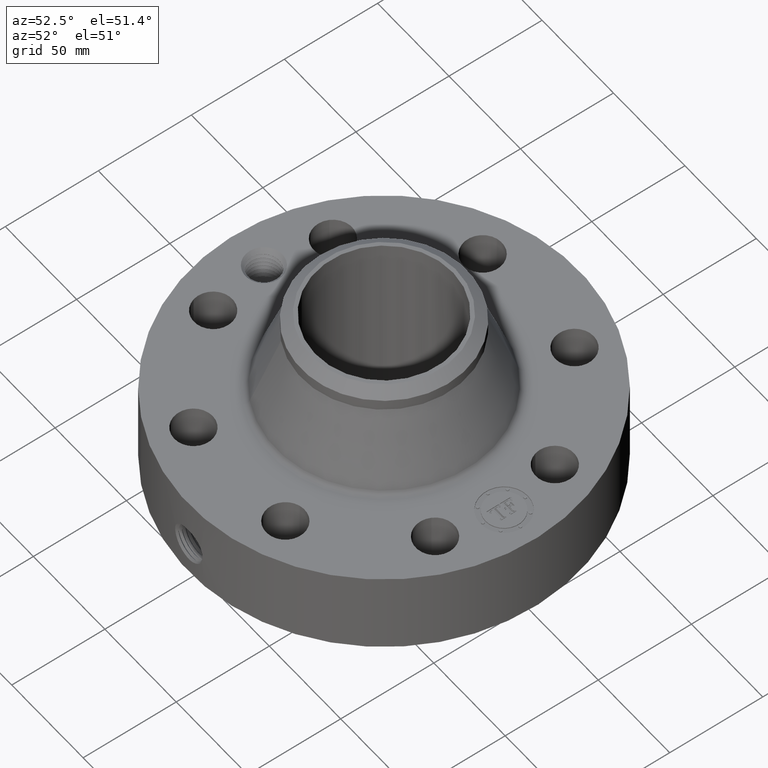
[diagram: clean part render]
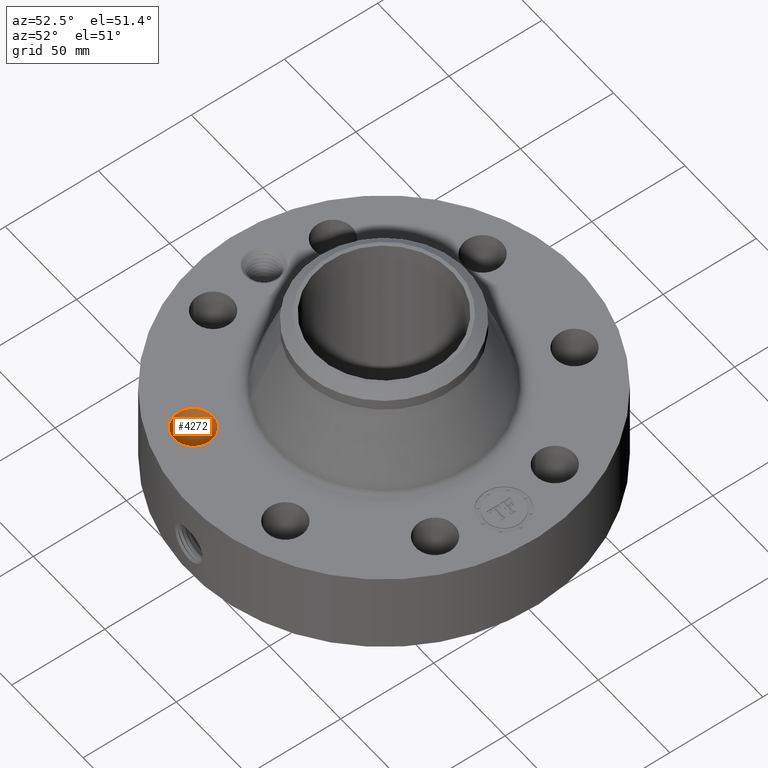
[diagram: same view with one face highlighted and labeled with its STEP entity id]
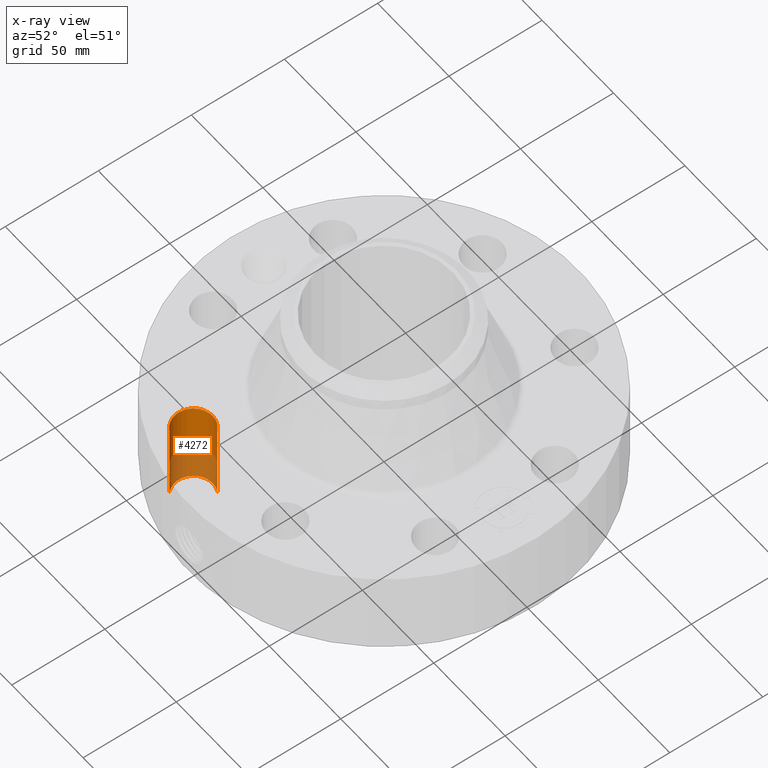
[diagram: x-ray of the same camera — body ghosted, the highlighted face saturated]
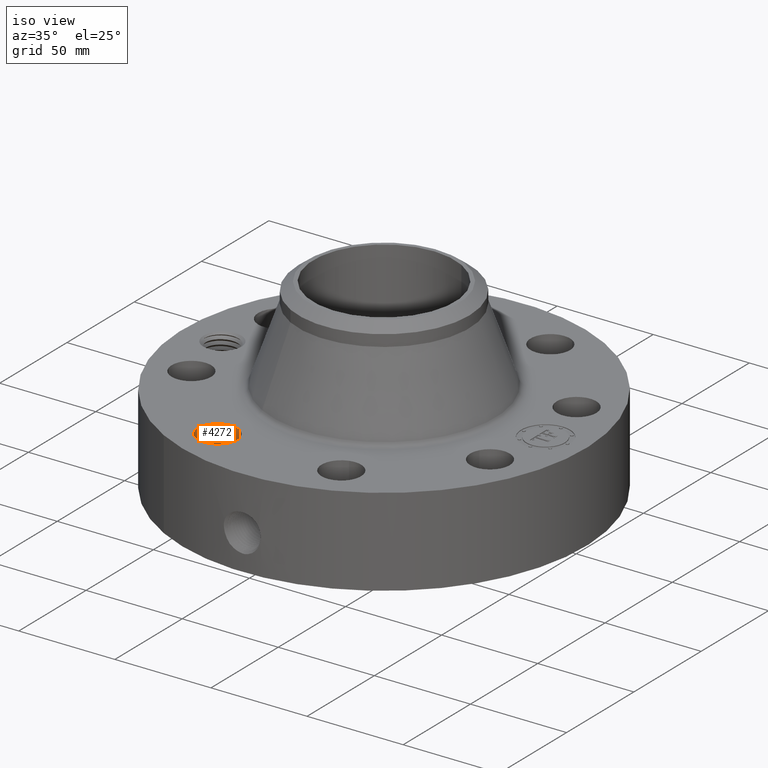
[diagram: same view with one face highlighted and labeled with its STEP entity id]
A machine part, auxiliary view. The second image highlights one B-rep face of the part: STEP entity #4272.
The next image is the same camera in x-ray: the body ghosted, the highlighted face saturated — about 44% of this face is hidden behind the body in this view.
A second angle (iso view) of the same face is appended — the face is thin or edge-on in the first view.
In plain terms, the highlighted cylindrical surface (edge-blend (fillet) strip) has radius 10.287 mm, axis along (0, -0, -1).
Its self-contained STEP definition (entity closure, byte-faithful):
#2994=AXIS2_PLACEMENT_3D('Circle Axis2P3D',#2992,#2993,$) ;
#4233=AXIS2_PLACEMENT_3D('Cylinder Axis2P3D',#4230,#4231,#4232) ;
#4263=AXIS2_PLACEMENT_3D('Circle Axis2P3D',#4261,#4262,$) ;
#2992=CARTESIAN_POINT('Axis2P3D Location',(-1.26668216113,-3.05804125262,1.81300000001)) ;
#2996=CARTESIAN_POINT('Vertex',(-1.46084950427,-3.41346219019,1.81300000001)) ;
#2998=CARTESIAN_POINT('Vertex',(-1.072514818,-2.70262031506,1.81300000001)) ;
#4230=CARTESIAN_POINT('Axis2P3D Location',(-1.26668216113,-3.05804125262,1.80906299213)) ;
#4235=CARTESIAN_POINT('Line Origine',(-1.072514818,-2.70262031506,0.906500000004)) ;
#4239=CARTESIAN_POINT('Vertex',(-1.072514818,-2.70262031506,0.)) ;
#4246=CARTESIAN_POINT('Vertex',(-1.46084950427,-3.41346219019,0.)) ;
#4249=CARTESIAN_POINT('Line Origine',(-1.46084950427,-3.41346219019,0.906500000004)) ;
#4261=CARTESIAN_POINT('Axis2P3D Location',(-1.26668216113,-3.05804125262,0.)) ;
#2993=DIRECTION('Axis2P3D Direction',(0.,0.,-0.0393700787402)) ;
#4231=DIRECTION('Axis2P3D Direction',(0.,-0.,-0.0393700787402)) ;
#4232=DIRECTION('Axis2P3D XDirection',(-0.0188750212049,-0.0345504945626,0.)) ;
#4236=DIRECTION('Vector Direction',(0.,0.,-0.0393700787402)) ;
#4250=DIRECTION('Vector Direction',(0.,0.,-0.0393700787402)) ;
#4262=DIRECTION('Axis2P3D Direction',(0.,-0.,-0.0393700787402)) ;
#4237=VECTOR('Line Direction',#4236,0.0393700787402) ;
#4251=VECTOR('Line Direction',#4250,0.0393700787402) ;
#4267=ORIENTED_EDGE('',*,*,#4253,.F.) ;
#4268=ORIENTED_EDGE('',*,*,#4265,.T.) ;
#4269=ORIENTED_EDGE('',*,*,#4241,.T.) ;
#4270=ORIENTED_EDGE('',*,*,#3000,.F.) ;
#4272=ADVANCED_FACE('PartBody',(#4271),#4234,.F.) ;
#2995=CIRCLE('generated circle',#2994,0.405000000002) ;
#4264=CIRCLE('generated circle',#4263,0.405000000002) ;
#4234=CYLINDRICAL_SURFACE('generated cylinder',#4233,0.405000000002) ;
#3000=EDGE_CURVE('',#2997,#2999,#2995,.T.) ;
#4241=EDGE_CURVE('',#4240,#2999,#4238,.F.) ;
#4253=EDGE_CURVE('',#4247,#2997,#4252,.F.) ;
#4265=EDGE_CURVE('',#4247,#4240,#4264,.T.) ;
#4266=EDGE_LOOP('',(#4267,#4268,#4269,#4270)) ;
#4271=FACE_OUTER_BOUND('',#4266,.T.) ;
#4238=LINE('Line',#4235,#4237) ;
#4252=LINE('Line',#4249,#4251) ;
#2997=VERTEX_POINT('',#2996) ;
#2999=VERTEX_POINT('',#2998) ;
#4240=VERTEX_POINT('',#4239) ;
#4247=VERTEX_POINT('',#4246) ;